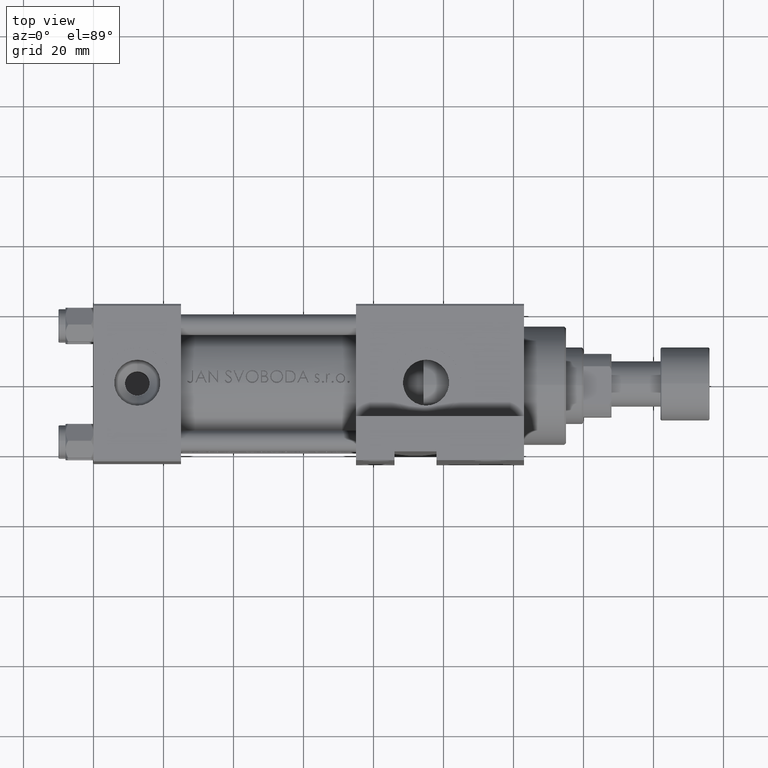
[diagram: clean part render]
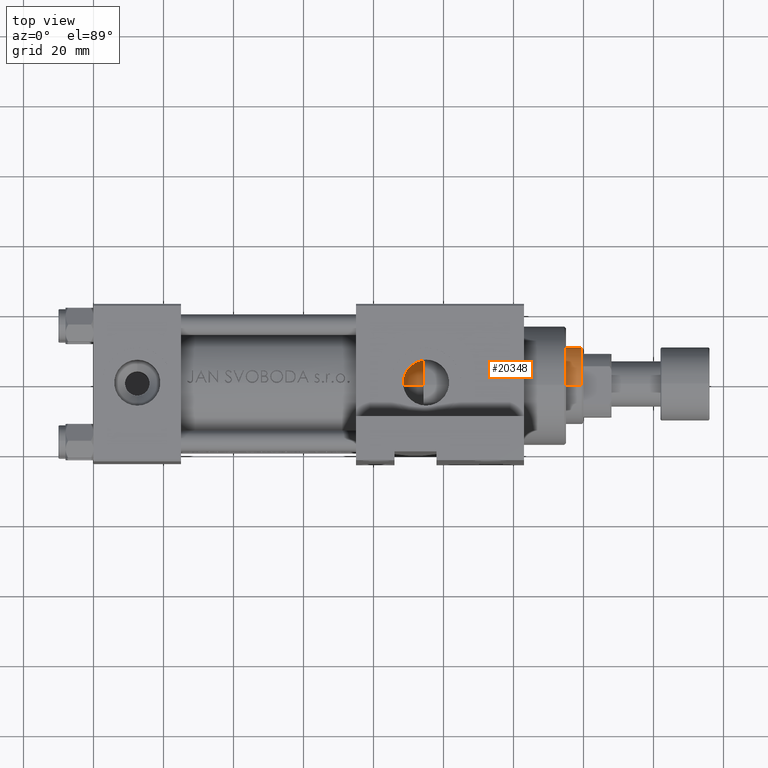
[diagram: same view with one face highlighted and labeled with its STEP entity id]
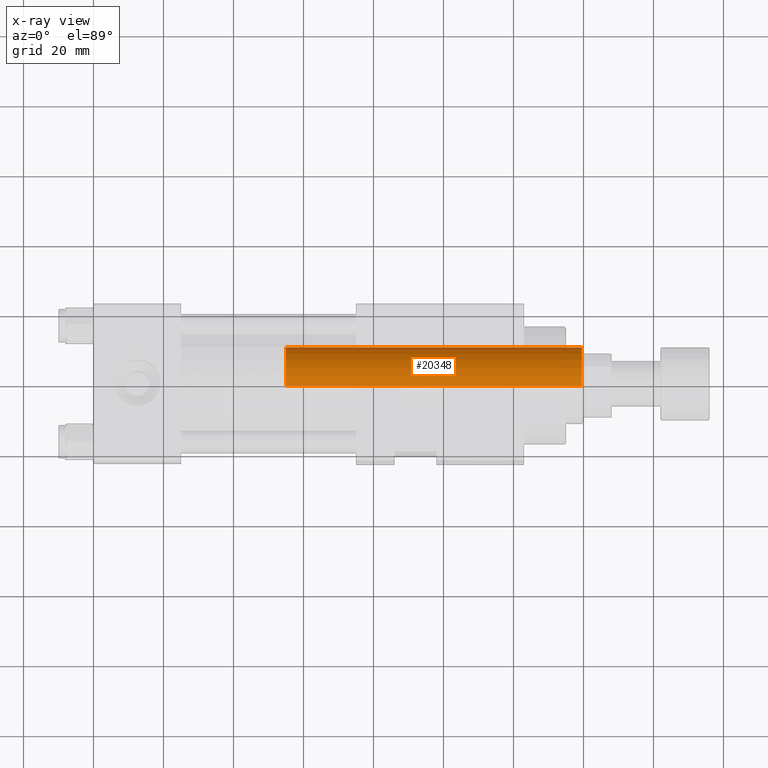
[diagram: x-ray of the same camera — body ghosted, the highlighted face saturated]
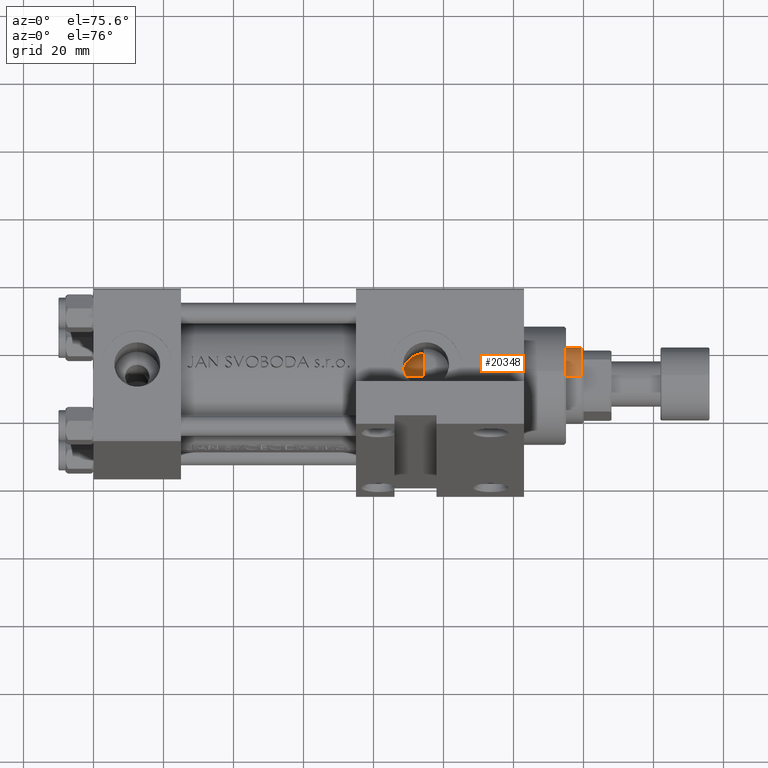
[diagram: same view with one face highlighted and labeled with its STEP entity id]
A machine part, top view. The second image highlights one B-rep face of the part: STEP entity #20348.
The next image is the same camera in x-ray: the body ghosted, the highlighted face saturated — about 2% of this face is hidden behind the body in this view.
A second angle (auxiliary view) of the same face is appended — the face is thin or edge-on in the first view.
In plain terms, the highlighted cylindrical surface (partial cylindrical patch) has radius 11 mm, axis along (-1, 0, 0).
Its self-contained STEP definition (entity closure, byte-faithful):
#2094 = VERTEX_POINT ( 'NONE', #24887 ) ;
#2333 = EDGE_CURVE ( 'NONE', #9493, #6355, #33192, .T. ) ;
#3694 = DIRECTION ( 'NONE',  ( 0.000000000000000000, 0.000000000000000000, 1.000000000000000000 ) ) ;
#3936 = DIRECTION ( 'NONE',  ( 1.000000000000000000, 0.000000000000000000, 0.000000000000000000 ) ) ;
#5648 = CARTESIAN_POINT ( 'NONE',  ( 0.000000000000000000, 0.000000000000000000, 115.0000000000000000 ) ) ;
#6355 = VERTEX_POINT ( 'NONE', #23004 ) ;
#6851 = CARTESIAN_POINT ( 'NONE',  ( 11.00000000000000000, 1.347111479062088405E-15, 114.5000000000000142 ) ) ;
#8227 = AXIS2_PLACEMENT_3D ( 'NONE', #5648, #40151, #13965 ) ;
#8489 = ORIENTED_EDGE ( 'NONE', *, *, #2333, .F. ) ;
#8595 = CARTESIAN_POINT ( 'NONE',  ( -11.00000000000000000, 0.000000000000000000, 115.0000000000000000 ) ) ;
#9493 = VERTEX_POINT ( 'NONE', #6851 ) ;
#9652 = EDGE_CURVE ( 'NONE', #2094, #28199, #35538, .T. ) ;
#9796 = EDGE_LOOP ( 'NONE', ( #8489, #24097, #43121, #17048 ) ) ;
#10421 = FACE_OUTER_BOUND ( 'NONE', #9796, .T. ) ;
#11996 = EDGE_CURVE ( 'NONE', #28199, #6355, #45729, .T. ) ;
#13965 = DIRECTION ( 'NONE',  ( -1.000000000000000000, 0.000000000000000000, 0.000000000000000000 ) ) ;
#15444 = VECTOR ( 'NONE', #48772, 1000.000000000000000 ) ;
#15791 = CARTESIAN_POINT ( 'NONE',  ( 0.000000000000000000, 0.000000000000000000, 30.00000000000000000 ) ) ;
#16040 = DIRECTION ( 'NONE',  ( 1.000000000000000000, 0.000000000000000000, 0.000000000000000000 ) ) ;
#17048 = ORIENTED_EDGE ( 'NONE', *, *, #11996, .T. ) ;
#20348 = ADVANCED_FACE ( 'NONE', ( #10421 ), #36875, .T. ) ;
#22578 = CARTESIAN_POINT ( 'NONE',  ( 0.000000000000000000, 0.000000000000000000, 114.5000000000000142 ) ) ;
#23004 = CARTESIAN_POINT ( 'NONE',  ( 11.00000000000000000, 1.347111479062088405E-15, 30.00000000000000000 ) ) ;
#24097 = ORIENTED_EDGE ( 'NONE', *, *, #34343, .T. ) ;
#24887 = CARTESIAN_POINT ( 'NONE',  ( -11.00000000000000000, 0.000000000000000000, 114.5000000000000142 ) ) ;
#28199 = VERTEX_POINT ( 'NONE', #43029 ) ;
#32083 = VECTOR ( 'NONE', #39321, 1000.000000000000000 ) ;
#33192 = LINE ( 'NONE', #37705, #15444 ) ;
#34343 = EDGE_CURVE ( 'NONE', #9493, #2094, #42428, .T. ) ;
#35538 = LINE ( 'NONE', #8595, #32083 ) ;
#36875 = CYLINDRICAL_SURFACE ( 'NONE', #8227, 11.00000000000000000 ) ;
#37705 = CARTESIAN_POINT ( 'NONE',  ( 11.00000000000000000, 1.347111479062088405E-15, 115.0000000000000000 ) ) ;
#39321 = DIRECTION ( 'NONE',  ( -0.000000000000000000, -0.000000000000000000, -1.000000000000000000 ) ) ;
#40151 = DIRECTION ( 'NONE',  ( -0.000000000000000000, -0.000000000000000000, -1.000000000000000000 ) ) ;
#42428 = CIRCLE ( 'NONE', #46395, 11.00000000000000000 ) ;
#43029 = CARTESIAN_POINT ( 'NONE',  ( -11.00000000000000000, 0.000000000000000000, 30.00000000000000000 ) ) ;
#43121 = ORIENTED_EDGE ( 'NONE', *, *, #9652, .T. ) ;
#45729 = CIRCLE ( 'NONE', #46550, 11.00000000000000000 ) ;
#46001 = DIRECTION ( 'NONE',  ( 0.000000000000000000, 0.000000000000000000, -1.000000000000000000 ) ) ;
#46395 = AXIS2_PLACEMENT_3D ( 'NONE', #22578, #46001, #3936 ) ;
#46550 = AXIS2_PLACEMENT_3D ( 'NONE', #15791, #3694, #16040 ) ;
#48772 = DIRECTION ( 'NONE',  ( -0.000000000000000000, -0.000000000000000000, -1.000000000000000000 ) ) ;